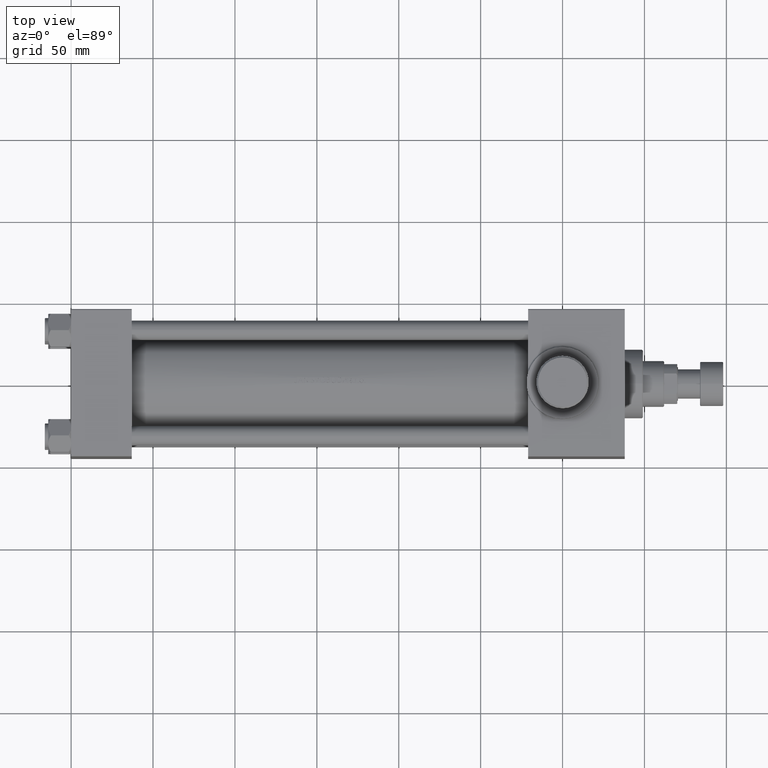
[diagram: clean part render]
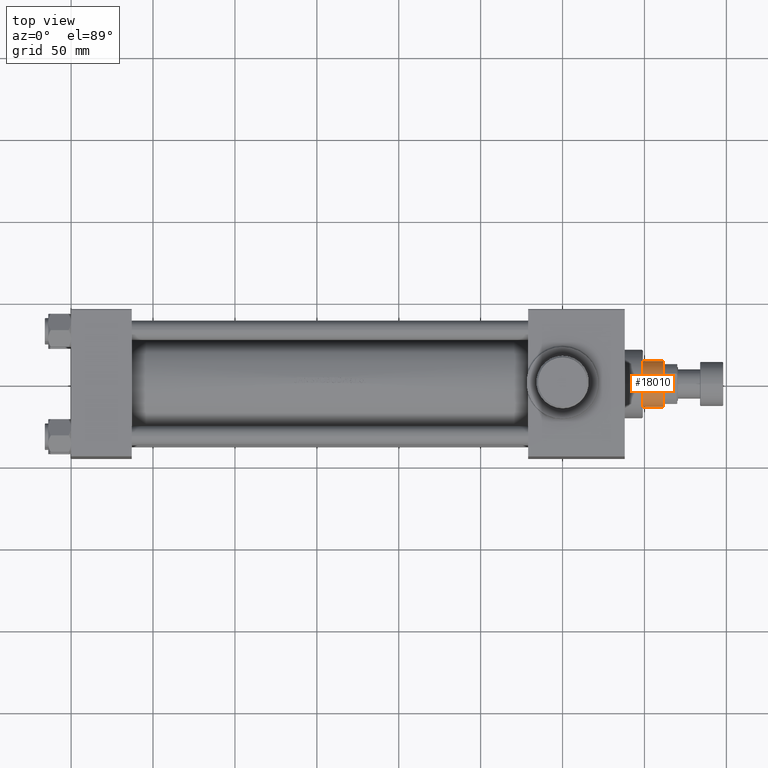
[diagram: same view with one face highlighted and labeled with its STEP entity id]
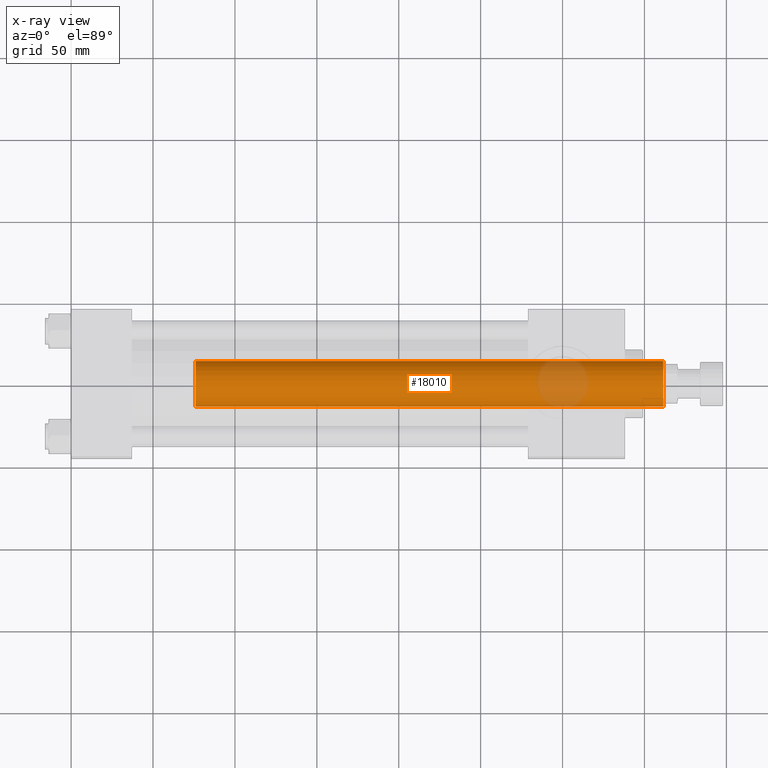
[diagram: x-ray of the same camera — body ghosted, the highlighted face saturated]
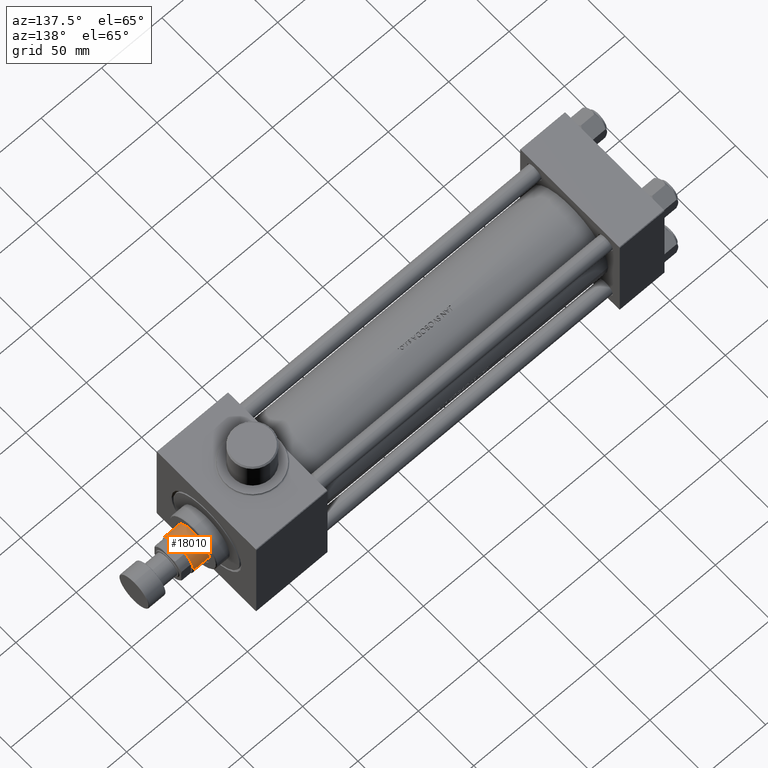
[diagram: same view with one face highlighted and labeled with its STEP entity id]
A machine part, top view. The second image highlights one B-rep face of the part: STEP entity #18010.
The next image is the same camera in x-ray: the body ghosted, the highlighted face saturated — about 9% of this face is hidden behind the body in this view.
A second angle (auxiliary view) of the same face is appended — the face is thin or edge-on in the first view.
In plain terms, the highlighted cylindrical surface (edge-blend (fillet) strip) has radius 14 mm, axis along (-1, 0, 0).
Its self-contained STEP definition (entity closure, byte-faithful):
#748 = AXIS2_PLACEMENT_3D ( 'NONE', #24902, #6828, #7290 ) ;
#1945 = DIRECTION ( 'NONE',  ( 1.000000000000000000, 0.000000000000000000, 0.000000000000000000 ) ) ;
#2921 = AXIS2_PLACEMENT_3D ( 'NONE', #22527, #17124, #31647 ) ;
#5171 = ORIENTED_EDGE ( 'NONE', *, *, #18761, .F. ) ;
#5311 = CARTESIAN_POINT ( 'NONE',  ( 14.00000000000000178, 1.714505518806294835E-15, 39.00000000000000000 ) ) ;
#5661 = DIRECTION ( 'NONE',  ( -0.000000000000000000, -0.000000000000000000, -1.000000000000000000 ) ) ;
#5805 = DIRECTION ( 'NONE',  ( -0.000000000000000000, -0.000000000000000000, -1.000000000000000000 ) ) ;
#6416 = CYLINDRICAL_SURFACE ( 'NONE', #2921, 14.00000000000000178 ) ;
#6656 = CIRCLE ( 'NONE', #23384, 14.00000000000000178 ) ;
#6828 = DIRECTION ( 'NONE',  ( 0.000000000000000000, 0.000000000000000000, -1.000000000000000000 ) ) ;
#7290 = DIRECTION ( 'NONE',  ( 1.000000000000000000, 0.000000000000000000, 0.000000000000000000 ) ) ;
#8837 = DIRECTION ( 'NONE',  ( 0.000000000000000000, 0.000000000000000000, 1.000000000000000000 ) ) ;
#9754 = CARTESIAN_POINT ( 'NONE',  ( -14.00000000000000178, 0.000000000000000000, 39.00000000000000000 ) ) ;
#11939 = EDGE_CURVE ( 'NONE', #23422, #22023, #6656, .T. ) ;
#12642 = EDGE_CURVE ( 'NONE', #16391, #23422, #26983, .T. ) ;
#12819 = VERTEX_POINT ( 'NONE', #15289 ) ;
#15289 = CARTESIAN_POINT ( 'NONE',  ( 14.00000000000000178, 1.714505518806294835E-15, 324.4999999999999432 ) ) ;
#16370 = LINE ( 'NONE', #26622, #43960 ) ;
#16391 = VERTEX_POINT ( 'NONE', #44167 ) ;
#17124 = DIRECTION ( 'NONE',  ( -0.000000000000000000, -0.000000000000000000, -1.000000000000000000 ) ) ;
#18010 = ADVANCED_FACE ( 'NONE', ( #46647 ), #6416, .T. ) ;
#18761 = EDGE_CURVE ( 'NONE', #12819, #22023, #16370, .T. ) ;
#22023 = VERTEX_POINT ( 'NONE', #5311 ) ;
#22527 = CARTESIAN_POINT ( 'NONE',  ( 0.000000000000000000, 0.000000000000000000, 324.9999999999999432 ) ) ;
#23384 = AXIS2_PLACEMENT_3D ( 'NONE', #26696, #8837, #1945 ) ;
#23422 = VERTEX_POINT ( 'NONE', #9754 ) ;
#24893 = VECTOR ( 'NONE', #5805, 1000.000000000000000 ) ;
#24902 = CARTESIAN_POINT ( 'NONE',  ( 0.000000000000000000, 0.000000000000000000, 324.4999999999999432 ) ) ;
#25019 = CIRCLE ( 'NONE', #748, 14.00000000000000178 ) ;
#25350 = EDGE_LOOP ( 'NONE', ( #5171, #37049, #39106, #30899 ) ) ;
#26622 = CARTESIAN_POINT ( 'NONE',  ( 14.00000000000000178, 1.714505518806294835E-15, 324.9999999999999432 ) ) ;
#26696 = CARTESIAN_POINT ( 'NONE',  ( 0.000000000000000000, 0.000000000000000000, 39.00000000000000000 ) ) ;
#26983 = LINE ( 'NONE', #41514, #24893 ) ;
#30899 = ORIENTED_EDGE ( 'NONE', *, *, #11939, .T. ) ;
#31647 = DIRECTION ( 'NONE',  ( -1.000000000000000000, 0.000000000000000000, 0.000000000000000000 ) ) ;
#37049 = ORIENTED_EDGE ( 'NONE', *, *, #46454, .T. ) ;
#39106 = ORIENTED_EDGE ( 'NONE', *, *, #12642, .T. ) ;
#41514 = CARTESIAN_POINT ( 'NONE',  ( -14.00000000000000178, 0.000000000000000000, 324.9999999999999432 ) ) ;
#43960 = VECTOR ( 'NONE', #5661, 1000.000000000000000 ) ;
#44167 = CARTESIAN_POINT ( 'NONE',  ( -14.00000000000000178, 0.000000000000000000, 324.4999999999999432 ) ) ;
#46454 = EDGE_CURVE ( 'NONE', #12819, #16391, #25019, .T. ) ;
#46647 = FACE_OUTER_BOUND ( 'NONE', #25350, .T. ) ;